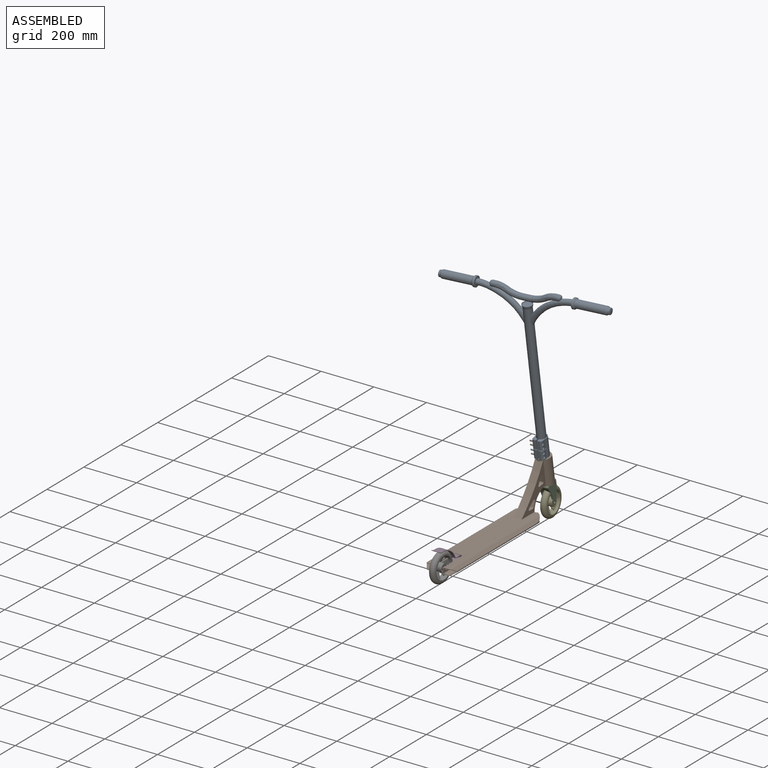
[diagram: assembled view]
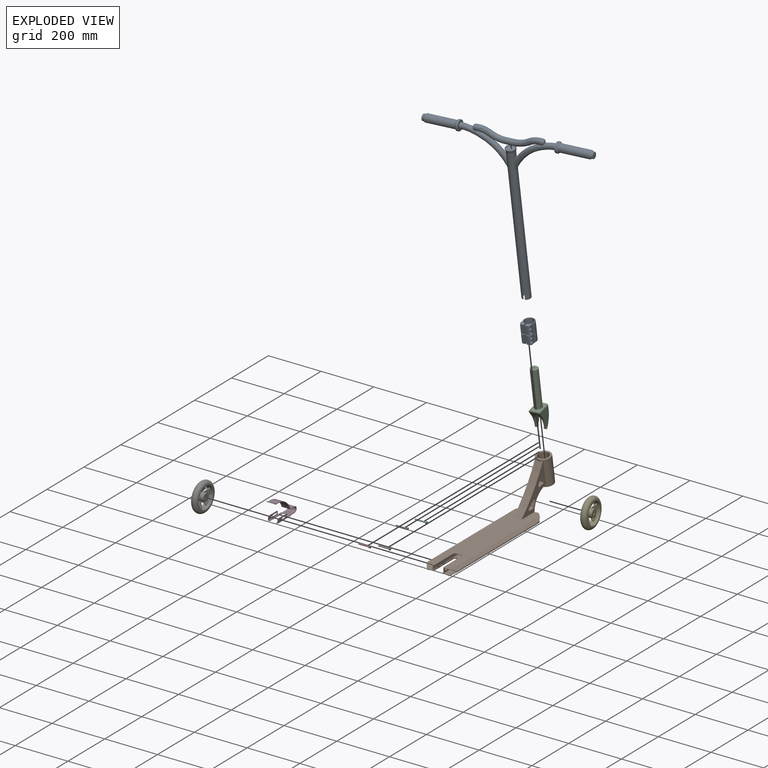
[diagram: exploded view]
GUIDED TOUR — MATED ASSEMBLY WITH SUBASSEMBLIES (Onshape document 58a45bdb176e9a0f88bd4a74, AutoMate assembly 58a45bdb176e9a0f88bd4a74_7fb52c981d04f5291ed24b62_b31cd171ed292f6dc39dd315_default)

This assembly has 13 component occurrences arranged in 11 top-level units: 10 individual components plus 1 subassembly (S0). The tour has two levels: first the top level, where each subassembly is treated as one rigid unit; then each subassembly is toured internally in its own section (nesting deeper than one subassembly level is flattened into its subassembly's section).

Components are labeled P0..P12 across the whole record; subassembly units are labeled S0..S0. A mate is a constraint between two units; its type names the relative motion it leaves free:
  CYLINDRICAL — leaves both rotation about and translation along the listed axis free,
  FASTENED — locks the two components together rigidly (no relative motion).
Axis/direction vectors are unit vectors and 'through' points are millimeter coordinates, both in the assembly's world frame.

TOP-LEVEL MATES (between units; each subassembly's internal mates are listed in its own section)
  1. FASTENED "Fastened 7": P1 <-> P10, direction (-1.000, 0.000, 0.000) through (9.01, 298.69, 169.64) mm
  2. CYLINDRICAL "Cylindrical 3": P12 <-> P5, axis (0.995, 0.095, 0.015) through (-12.50, 350.81, -5.88) mm
  3. FASTENED "Fastened 1": P11 <-> P4, direction (-1.000, 0.000, 0.000) through (19.00, -236.00, -7.72) mm
  4. FASTENED "Fastened 3": P10 <-> P11, direction (0.000, 0.156, -0.988) through (-0.07, 320.10, 163.60) mm
  5. FASTENED "Fastened 4": P9 <-> P10, direction (-1.000, 0.000, 0.000) through (9.01, 291.10, 217.54) mm
  6. CYLINDRICAL "Cylindrical 2": P12 <-> P11, axis (0.000, -0.156, 0.988) through (-0.07, 312.62, 210.82) mm
  7. FASTENED "Fastened 5": P3 <-> P10, direction (-1.000, 0.000, 0.000) through (9.01, 293.45, 202.73) mm
  8. FASTENED "Fastened 6": P6 <-> P10, direction (1.000, 0.000, 0.000) through (9.01, 296.34, 184.46) mm
  9. FASTENED "Fastened 2": S0 <-> P12, direction (0.000, 0.156, -0.988) through (-0.07, 318.88, 171.31) mm
  10. CYLINDRICAL "Cylindrical 1": P8 <-> P4, axis (1.000, 0.000, 0.000) through (12.00, -236.00, -7.72) mm

TOP-LEVEL ASSEMBLY ORDER
  1. P11 — the base component [order heuristic]
  2. P12 — core [order heuristic]
  3. P5 — core [order heuristic]
  4. P10 [order verified]
  5. P6 [order verified]
  6. P3 [order verified]
  7. P1 [order verified]
  8. P9 [order verified]
  9. S0 [order verified]
  10. P4 [order verified]
  11. P8 [order verified]
(P3, P6 verified with a relaxed clearance tolerance: the source model stores slight part interference there.)
Order-tag legend:
  [order verified] — this step's position reverses a verified removal order: the component was checked to insert without passing through the ones already placed.
  [order heuristic] — the first 3 components form the assembly's core: parts whose collision-free extraction could not be verified, listed in mate-graph order.

Of the 13 component occurrences, 1 carries the full construction recipe — the FeatureScript program that regenerates the part's solid from scratch; the rest are supplied as boundary geometry only. Each toured unit is shown spotlighted twice — assembled, then exploded with a leader line back to its socket (green = recipe-attached component, orange = geometry-only, blue = subassembly unit; the rest desaturated gray).
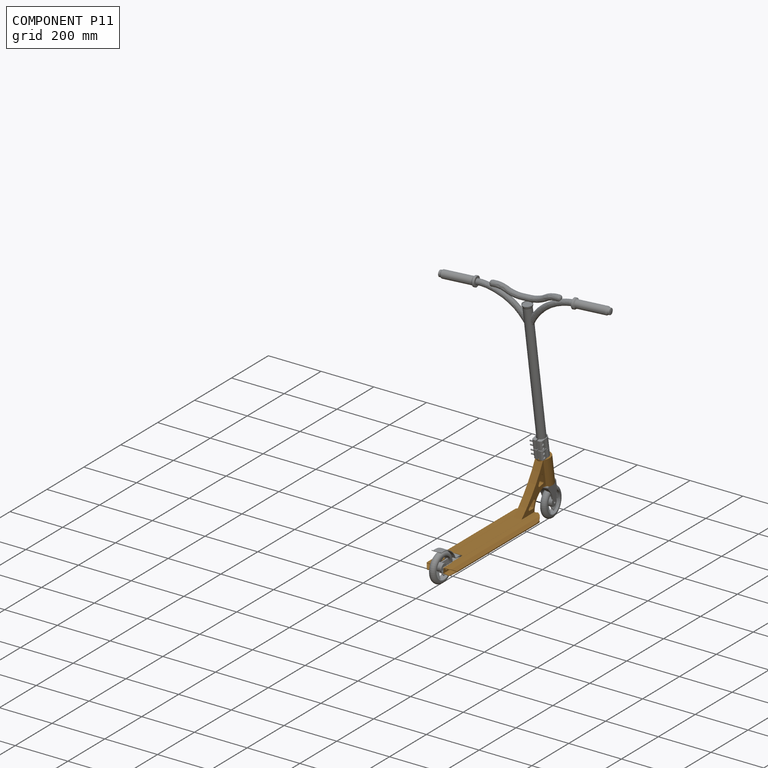
[diagram: component P11 — assembled]
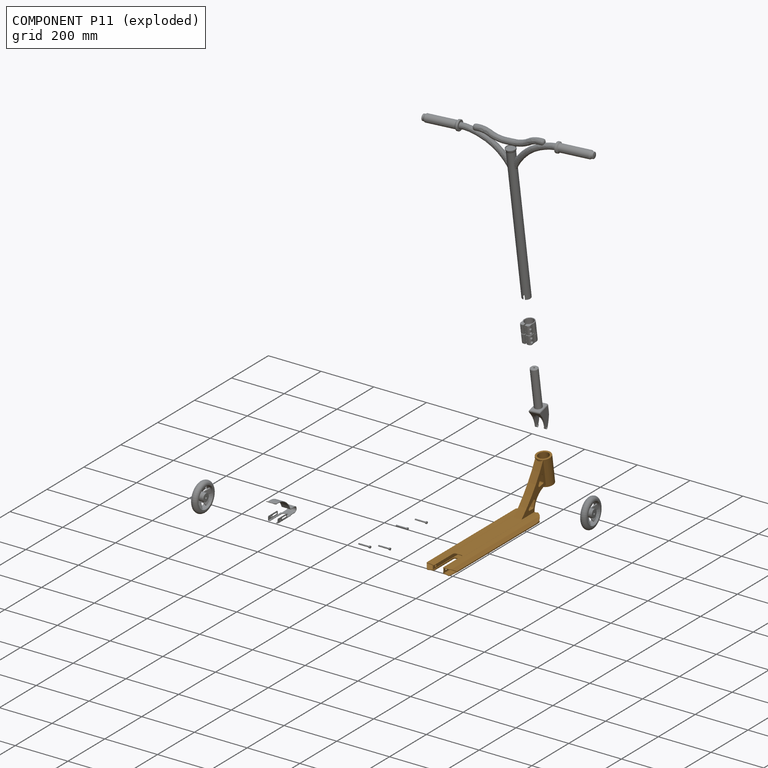
[diagram: component P11 — exploded]
COMPONENT P11 — geometry summary (no construction recipe available for this part):
  bounding box: 612.9 x 190.3 x 115.0 mm
  B-rep topology: 1 solid, 84 faces, 508 edges
  volume: 547966 mm^3 (4% of its bounding box)
  symmetry: mirror-symmetric across its x mid-plane
Held by: FASTENED mate "Fastened 1" to P4; FASTENED mate "Fastened 3" to P10; CYLINDRICAL mate "Cylindrical 2" to P12.
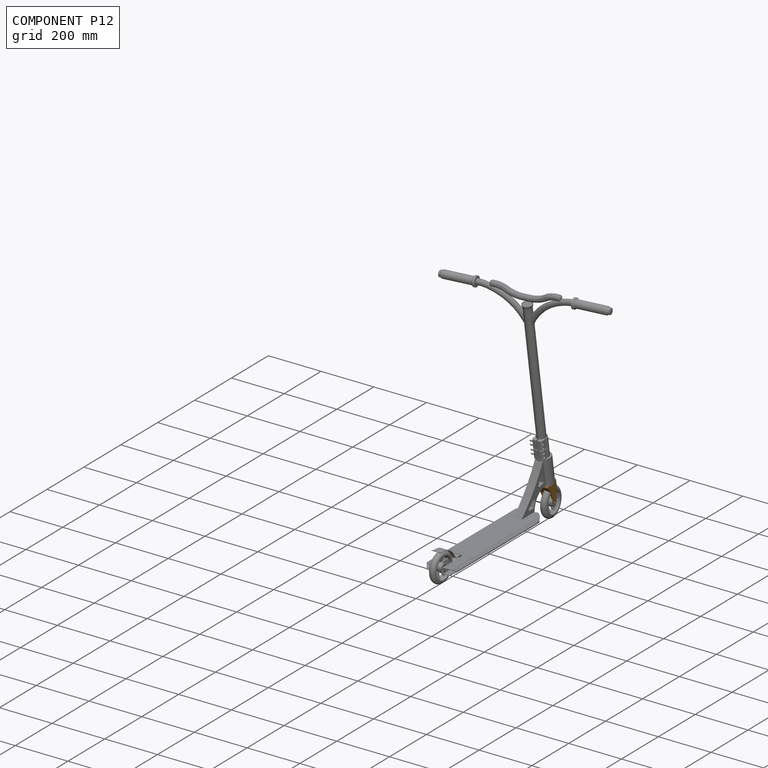
[diagram: component P12 — assembled]
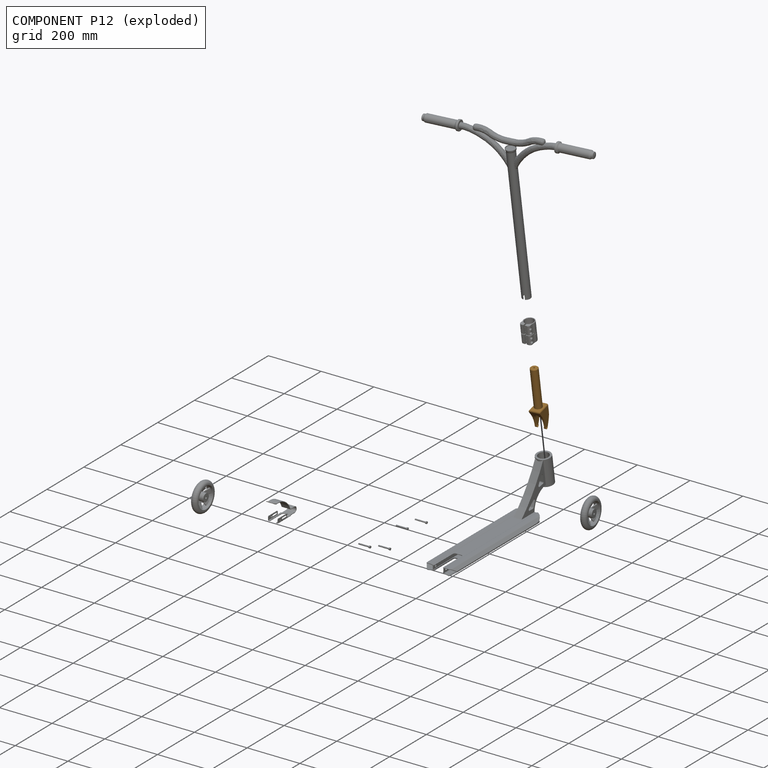
[diagram: component P12 — exploded]
COMPONENT P12 — geometry summary (no construction recipe available for this part):
  bounding box: 225.1 x 56.6 x 40.0 mm
  B-rep topology: 1 solid, 41 faces, 207 edges
  volume: 158816 mm^3 (31% of its bounding box)
  symmetry: mirror-symmetric across its y mid-plane
Held by: CYLINDRICAL mate "Cylindrical 3" to P5; CYLINDRICAL mate "Cylindrical 2" to P11; FASTENED mate "Fastened 2" to P0.
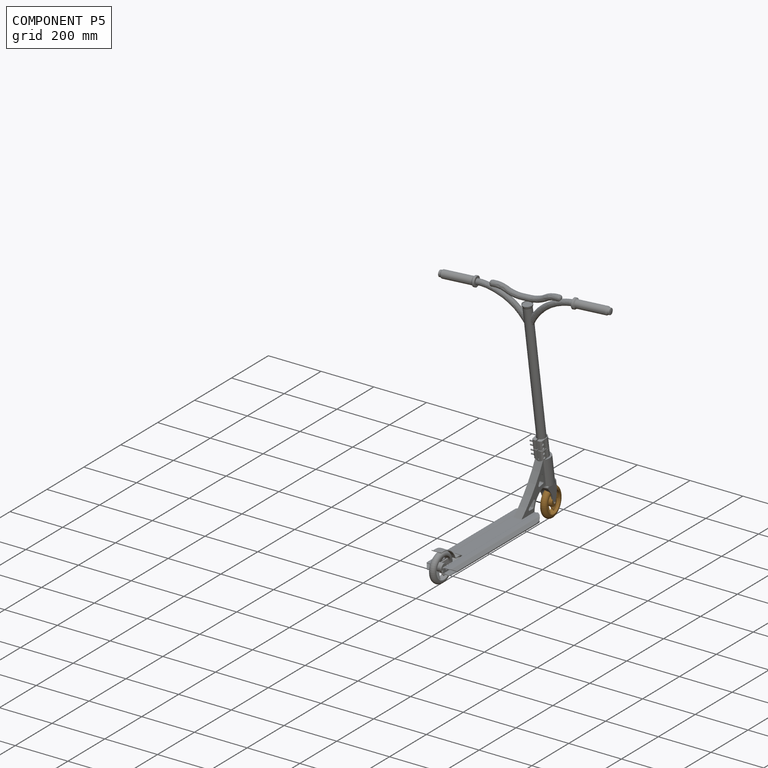
[diagram: component P5 — assembled]
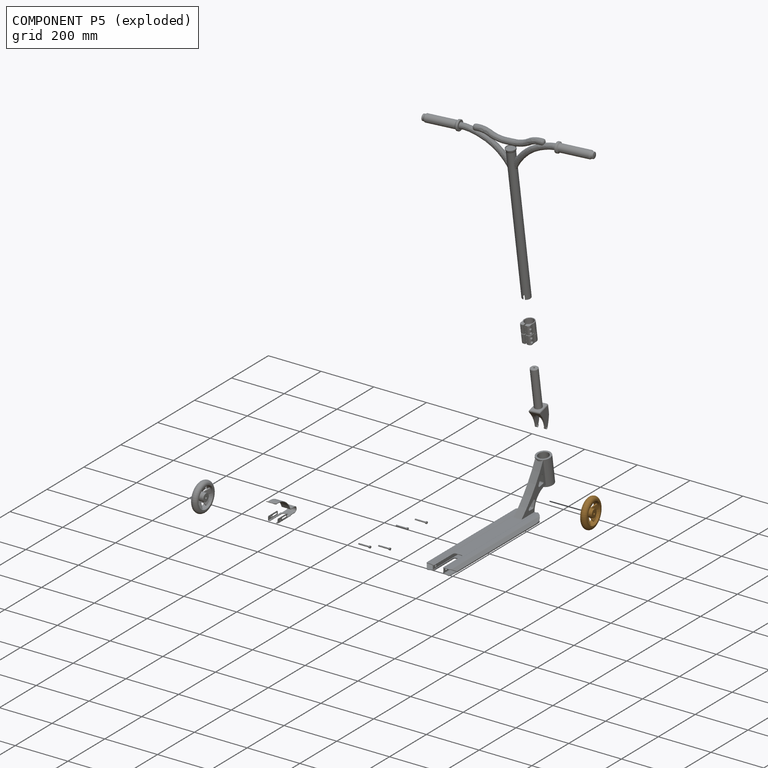
[diagram: component P5 — exploded]
COMPONENT P5 — geometry summary (no construction recipe available for this part):
  bounding box: 119.3 x 119.3 x 24.5 mm
  B-rep topology: 1 solid, 33 faces, 186 edges
  volume: 114822 mm^3 (33% of its bounding box)
  symmetry: 6-fold rotationally symmetric about the z axis; mirror-symmetric across its x mid-plane, y mid-plane
Held by: CYLINDRICAL mate "Cylindrical 3" to P12.
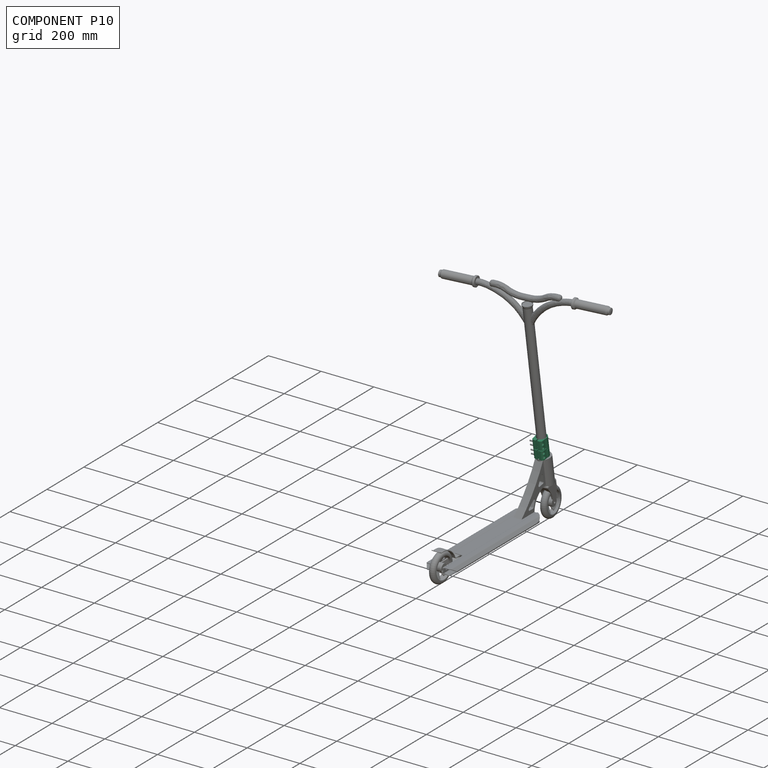
[diagram: component P10 — assembled]
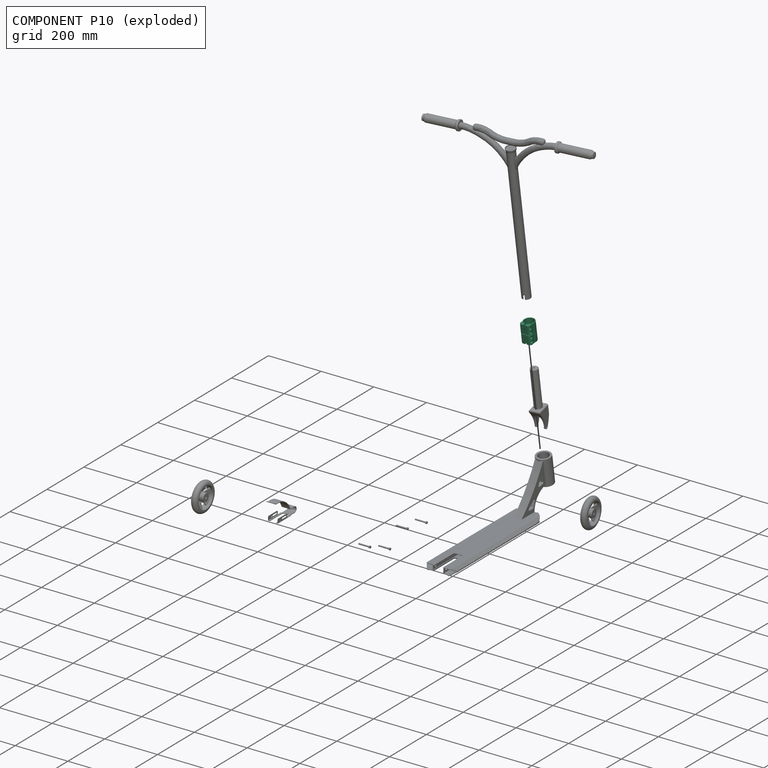
[diagram: component P10 — exploded]
COMPONENT P10 — recipe-attached (CADFS 00533072, mesh-verified: the recipe's output STEP matches this component's geometry to below the mesh-comparison resolution (tessellation chordal tolerance ~0.142 mm)).
Held by: FASTENED mate "Fastened 7" to P1; FASTENED mate "Fastened 3" to P11; FASTENED mate "Fastened 4" to P9; FASTENED mate "Fastened 5" to P3; FASTENED mate "Fastened 6" to P6.
Construction recipe (FeatureScript — the CAD program that rebuilds this solid; sketch coordinates are in the units given by the * unit suffixes, e.g. mm):

FeatureScript 1549;
import(path : "onshape/std/geometry.fs", version : "1549.0");
import(path : "onshape/std/common.fs", version : "1549.0");
const mm = millimeter;
const VERTEX = EntityType.VERTEX;
const EDGE = EntityType.EDGE;
const FACE = EntityType.FACE;
const BODY = EntityType.BODY;
function v(x, y){return vector(x, y);}
function OD(order){return orderDisambiguation(order);}
function OSD(set){return originalSetDisambiguation(set);}
function TD(topology){return topologyDisambiguation(topology);}
function TDD(query){return trueDependencyDisambiguation(query);}
function sQuery(a, b, c) {return sketchEntityQuery(a, b, c);}

annotation { "Feature Type Name" : "Feature", "Feature Type Description" : "" }
export const myFeature = defineFeature(function(context is Context, id is Id, definition is map)
    precondition{}
    {
        {
            var Q0;
            Q0=qCreatedBy(makeId("Top.planeOp"),FACE);
            var sketch = newSketch(context, id + "F0", { "sketchPlane" : qUnion([Q0])});
            skArc(sketch, "E0", {"start": v(-17.32, -2.5) * mm, "mid": v(17.5, 0) * mm, "end": v(-17.32, 2.5) * mm});
            skArc(sketch, "E1", {"start": v(-7.92, -18.9) * mm, "mid": v(20.5, 0) * mm, "end": v(-7.92, 18.9) * mm});
            skLineSegment(sketch, "E2", {"start": v(-7.92, 18.9) * mm, "end": v(-20.12, 18.9) * mm});
            skLineSegment(sketch, "E3", {"start": v(-28.12, 10.9) * mm, "end": v(-28.12, 2.5) * mm});
            skLineSegment(sketch, "E4", {"start": v(-28.12, 2.5) * mm, "end": v(-17.32, 2.5) * mm});
            skPoint(sketch, "E5.visualSharp", {"position": v(-28.12, 18.9) * mm});
            skArc(sketch, "E5.filletArc", {"start": v(-20.12, 18.9) * mm, "mid": v(-25.78, 16.57) * mm, "end": v(-28.12, 10.9) * mm});
            skLineSegment(sketch, "E6", {"start": v(0, 0) * mm, "end": v(33.48, 0) * mm, "construction": true});
            skLineSegment(sketch, "E7.MirrorCS", {"start": v(-7.92, -18.9) * mm, "end": v(-20.12, -18.9) * mm});
            skArc(sketch, "E8.MirrorCS", {"start": v(-20.12, -18.9) * mm, "mid": v(-25.78, -16.57) * mm, "end": v(-28.12, -10.9) * mm});
            skLineSegment(sketch, "E9.MirrorCS", {"start": v(-28.12, -10.9) * mm, "end": v(-28.12, -2.5) * mm});
            skLineSegment(sketch, "E10.MirrorCS", {"start": v(-28.12, -2.5) * mm, "end": v(-17.32, -2.5) * mm});
            skSolve(sketch);
        }
        {
            var Q0;
            Q0 = qSketchRegion(id + "F0", true);
            extrude(context, id + "F1", {"entities" : qUnion([Q0]), "depth" : 70 * mm, "offsetDistance" : 25 * mm, "symmetric" : true});
        }
        {
            var Q0;
            Q0=makeQuery(id+"F1.opExtrude","SWEPT_FACE",FACE,{"disambiguationData":[OSD([sQuery(id+"F0.wireOp",EDGE,"E7.MirrorCS")])]});
            var sketch = newSketch(context, id + "F2", { "sketchPlane" : qUnion([Q0])});
            skPoint(sketch, "E11", {"position": v(-20.2, -25.68) * mm});
            skPoint(sketch, "E12", {"position": v(-20.2, -10.68) * mm});
            skPoint(sketch, "E13", {"position": v(-20.2, 22.82) * mm});
            skPoint(sketch, "E14", {"position": v(-20.2, 7.82) * mm});
            skSolve(sketch);
        }
        {
            var Q0;
            Q0=sQuery(id+"F2.wireOp",VERTEX,"E11");
            var Q1;
            Q1=sQuery(id+"F2.wireOp",VERTEX,"E12");
            var Q2;
            Q2=sQuery(id+"F2.wireOp",VERTEX,"E14");
            var Q3;
            Q3=sQuery(id+"F2.wireOp",VERTEX,"E13");
            var Q4;
            Q4=makeQuery(id+"F1.opExtrude","SWEPT_BODY",BODY,{"disambiguationData":[OSD([sQuery(id+"F0.wireOp",EDGE,"E0"),sQuery(id+"F0.wireOp",EDGE,"E1"),sQuery(id+"F0.wireOp",EDGE,"E2"),sQuery(id+"F0.wireOp",EDGE,"E3"),sQuery(id+"F0.wireOp",EDGE,"E4"),sQuery(id+"F0.wireOp",EDGE,"E5.filletArc"),sQuery(id+"F0.wireOp",EDGE,"E7.MirrorCS"),sQuery(id+"F0.wireOp",EDGE,"E8.MirrorCS"),sQuery(id+"F0.wireOp",EDGE,"E9.MirrorCS"),sQuery(id+"F0.wireOp",EDGE,"E10.MirrorCS")])]});
            hole(context, id + "F3", {"style" : HoleStyle.C_BORE, "endStyle" : HoleEndStyle.THROUGH, "holeDiameter" : 5 * mm, "cBoreDiameter" : 10 * mm, "cBoreDepth" : 8 * mm, "majorDiameter" : 5 * mm, "isTappedThrough" : true, "tappedDepth" : 12 * mm, "tapClearance" : 3, "locations" : qUnion([Q0, Q1, Q2, Q3]), "scope" : qUnion([Q4])});
        }
        {
            var Q0;
            Q0=qCreatedBy(makeId("Front.planeOp"),FACE);
            var sketch = newSketch(context, id + "F4", { "sketchPlane" : qUnion([Q0])});
            skLineSegment(sketch, "E15.bottom", {"start": v(-28.12, 1) * mm, "end": v(-5.72, 1) * mm});
            skLineSegment(sketch, "E15.top", {"start": v(-28.12, -1) * mm, "end": v(-5.72, -1) * mm});
            skLineSegment(sketch, "E15.left", {"start": v(-28.12, 1) * mm, "end": v(-28.12, -1) * mm});
            skLineSegment(sketch, "E15.right", {"start": v(-5.72, 1) * mm, "end": v(-5.72, -1) * mm});
            skSolve(sketch);
        }
        {
            var Q0;
            Q0 = qSketchRegion(id + "F4", true);
            extrude(context, id + "F5", {"entities" : qUnion([Q0]), "operationType" : NewBodyOperationType.REMOVE, "oppositeDirection" : true, "depth" : 55 * mm, "offsetDistance" : 25 * mm, "symmetric" : true});
        }
        {
            var Q0;
            Q0=qCreatedBy(makeId("Top.planeOp"),FACE);
            var sketch = newSketch(context, id + "F6", { "sketchPlane" : qUnion([Q0])});
            skCircle(sketch, "E16", {"center": v(0, -25) * mm, "radius": 6 * mm});
            skCircle(sketch, "E17.1.0", {"center": v(17.68, -17.68) * mm, "radius": 6 * mm});
            skCircle(sketch, "E17.2.0", {"center": v(25, 0) * mm, "radius": 6 * mm});
            skCircle(sketch, "E17.3.0", {"center": v(17.68, 17.68) * mm, "radius": 6 * mm});
            skCircle(sketch, "E17.4.0", {"center": v(0, 25) * mm, "radius": 6 * mm});
            skPoint(sketch, "E17.center", {"position": v(0, 0) * mm});
            skLineSegment(sketch, "E17.anchor1", {"start": v(0, 0) * mm, "end": v(0, -25) * mm, "construction": true});
            skLineSegment(sketch, "E17.anchor2", {"start": v(0, 0) * mm, "end": v(0, 25) * mm, "construction": true});
            skSolve(sketch);
        }
        {
            var Q0;
            Q0 = qSketchRegion(id + "F6", true);
            extrude(context, id + "F7", {"entities" : qUnion([Q0]), "operationType" : NewBodyOperationType.REMOVE, "oppositeDirection" : true, "depth" : 8 * mm, "offsetDistance" : 25 * mm});
        }
    });
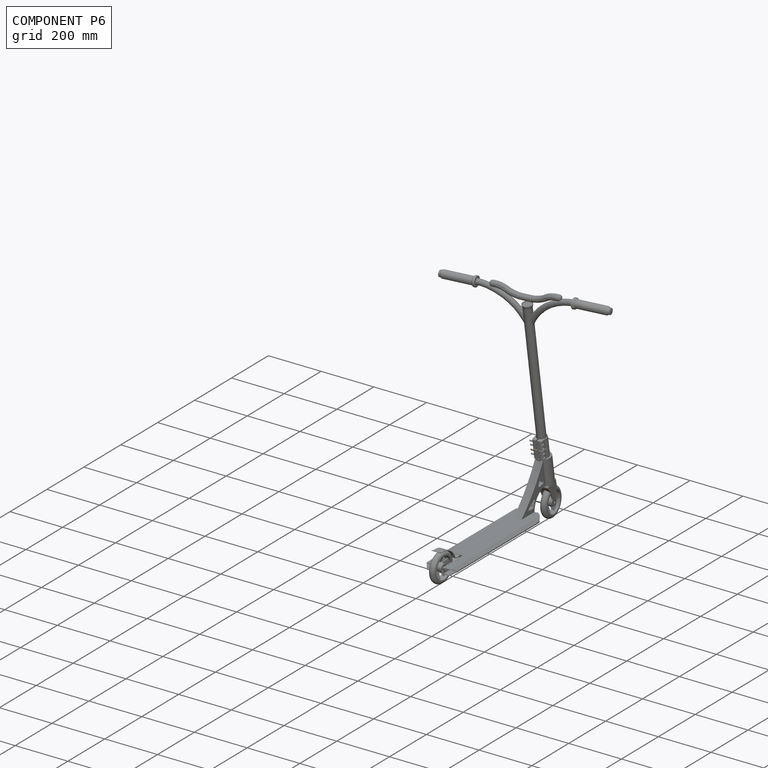
[diagram: component P6 — assembled]
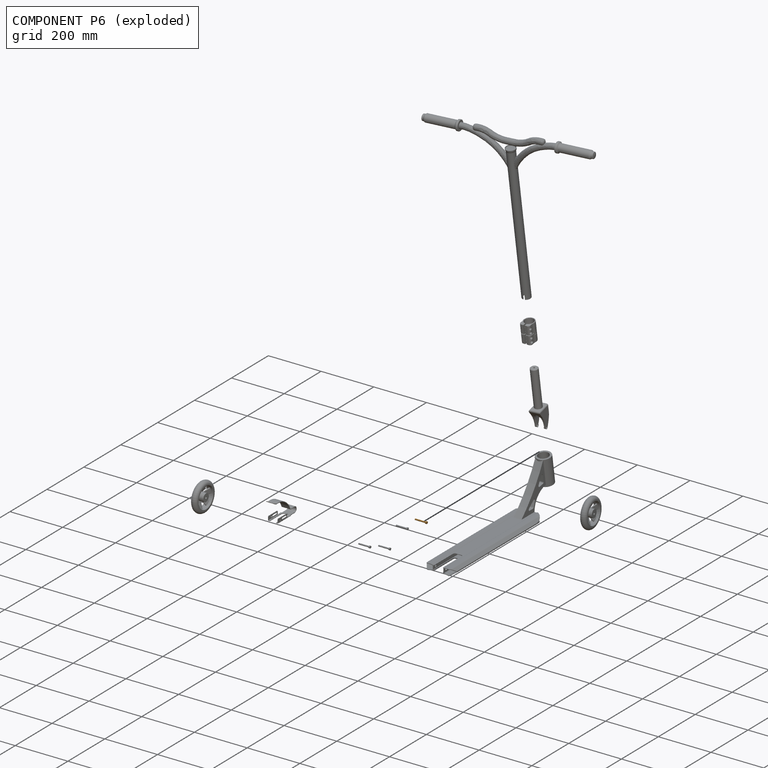
[diagram: component P6 — exploded]
COMPONENT P6 — geometry summary (no construction recipe available for this part):
  bounding box: 45.0 x 8.5 x 8.5 mm
  B-rep topology: 1 solid, 5 faces, 12 edges
  volume: 1069 mm^3 (33% of its bounding box)
  symmetry: revolution-symmetric about the z axis through its bounding-box center; mirror-symmetric across its x mid-plane, y mid-plane
Held by: FASTENED mate "Fastened 6" to P10.
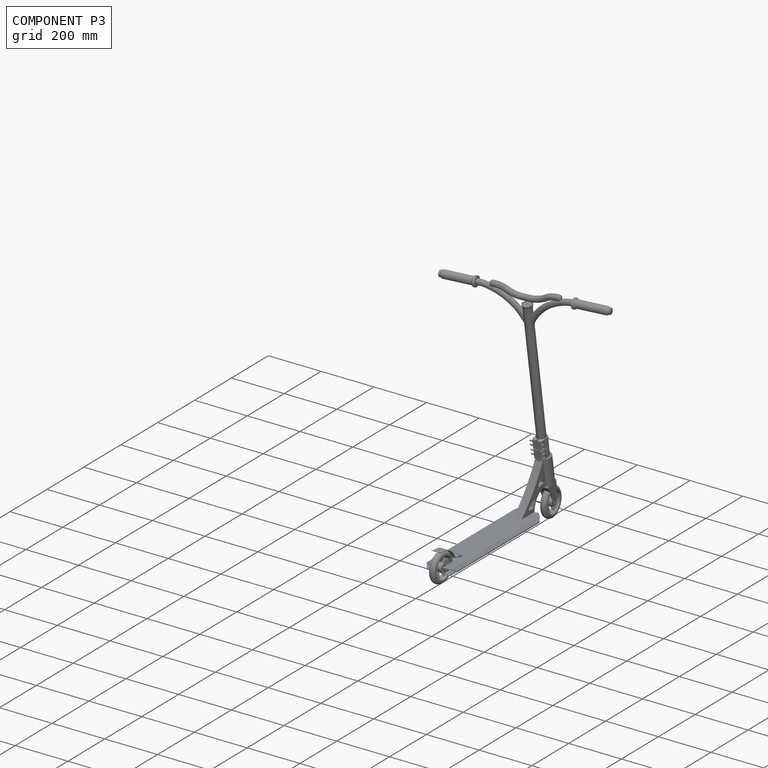
[diagram: component P3 — assembled]
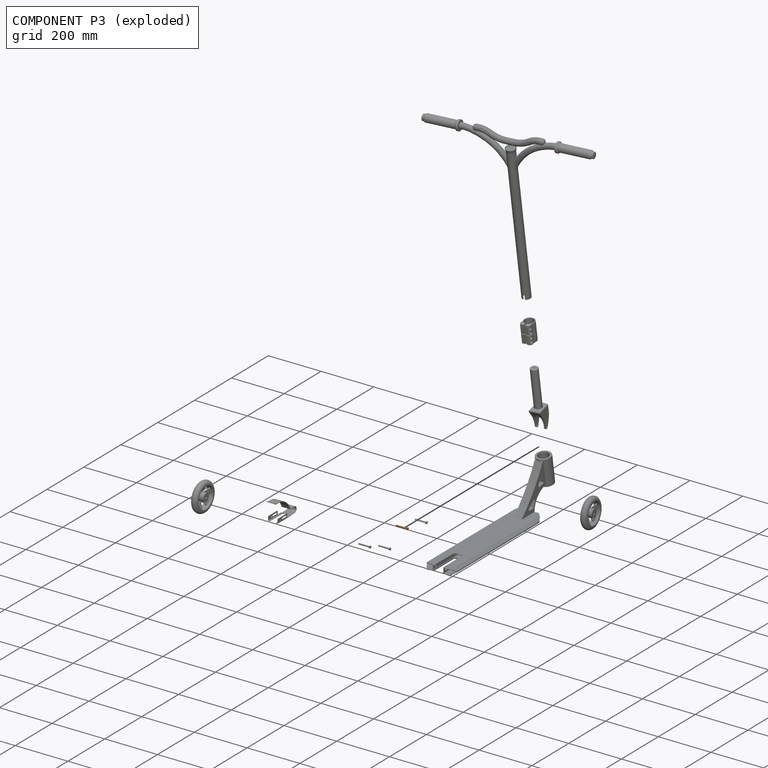
[diagram: component P3 — exploded]
COMPONENT P3 — geometry summary (no construction recipe available for this part):
  bounding box: 45.0 x 8.5 x 8.5 mm
  B-rep topology: 1 solid, 5 faces, 12 edges
  volume: 1069 mm^3 (33% of its bounding box)
  symmetry: revolution-symmetric about the z axis through its bounding-box center; mirror-symmetric across its x mid-plane, y mid-plane
Held by: FASTENED mate "Fastened 5" to P10.
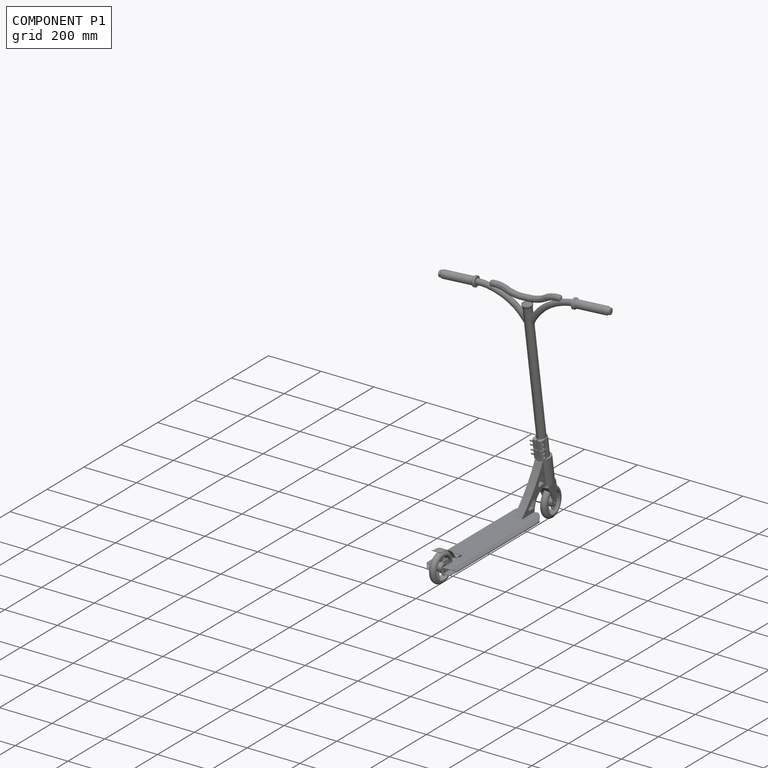
[diagram: component P1 — assembled]
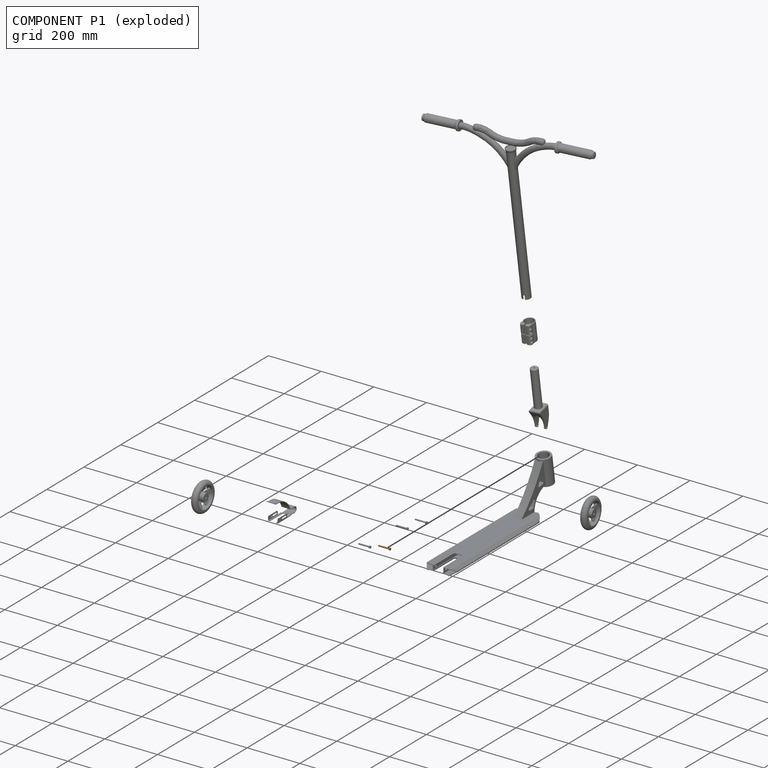
[diagram: component P1 — exploded]
COMPONENT P1 — geometry summary (no construction recipe available for this part):
  bounding box: 45.0 x 8.5 x 8.5 mm
  B-rep topology: 1 solid, 5 faces, 12 edges
  volume: 1069 mm^3 (33% of its bounding box)
  symmetry: revolution-symmetric about the z axis through its bounding-box center; mirror-symmetric across its x mid-plane, y mid-plane
Held by: FASTENED mate "Fastened 7" to P10.
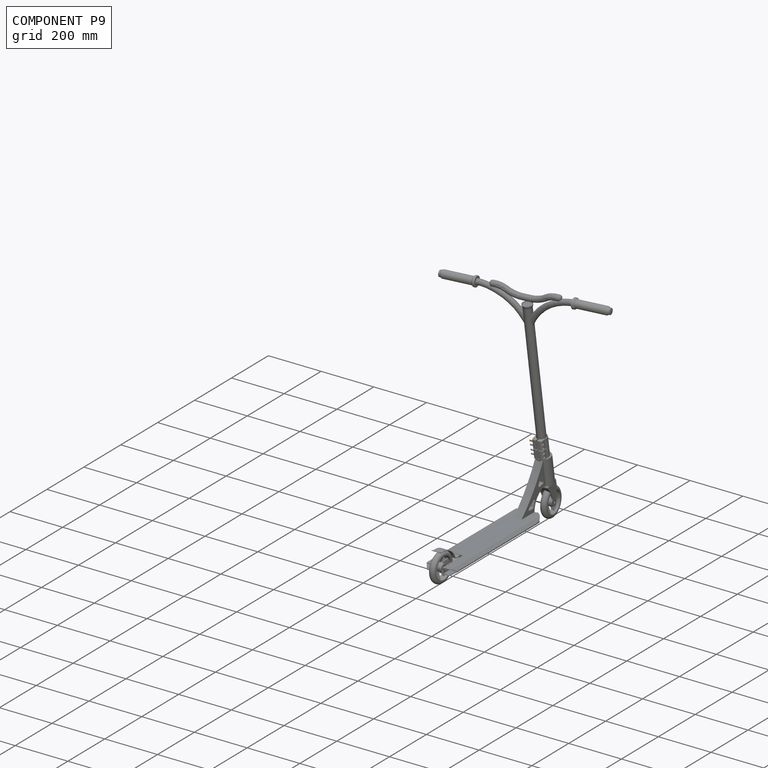
[diagram: component P9 — assembled]
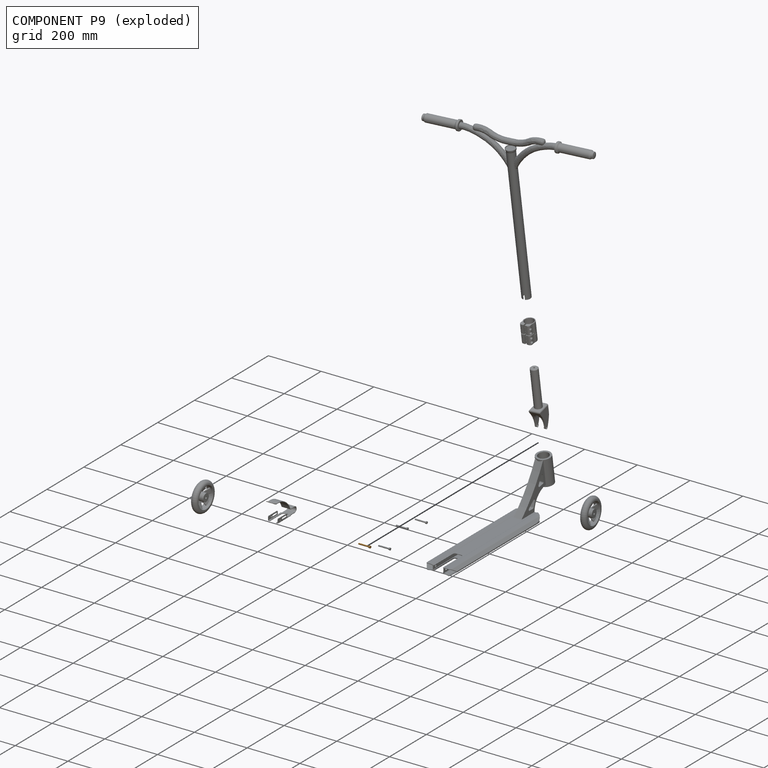
[diagram: component P9 — exploded]
COMPONENT P9 — geometry summary (no construction recipe available for this part):
  bounding box: 45.0 x 8.5 x 8.5 mm
  B-rep topology: 1 solid, 5 faces, 12 edges
  volume: 1069 mm^3 (33% of its bounding box)
  symmetry: revolution-symmetric about the z axis through its bounding-box center; mirror-symmetric across its x mid-plane, y mid-plane
Held by: FASTENED mate "Fastened 4" to P10.
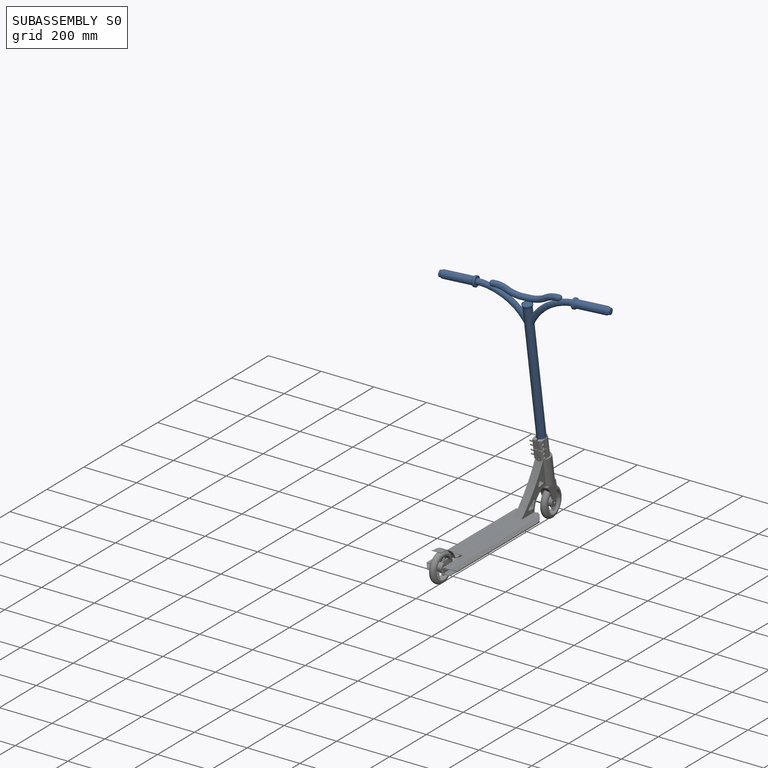
[diagram: subassembly S0 — assembled]
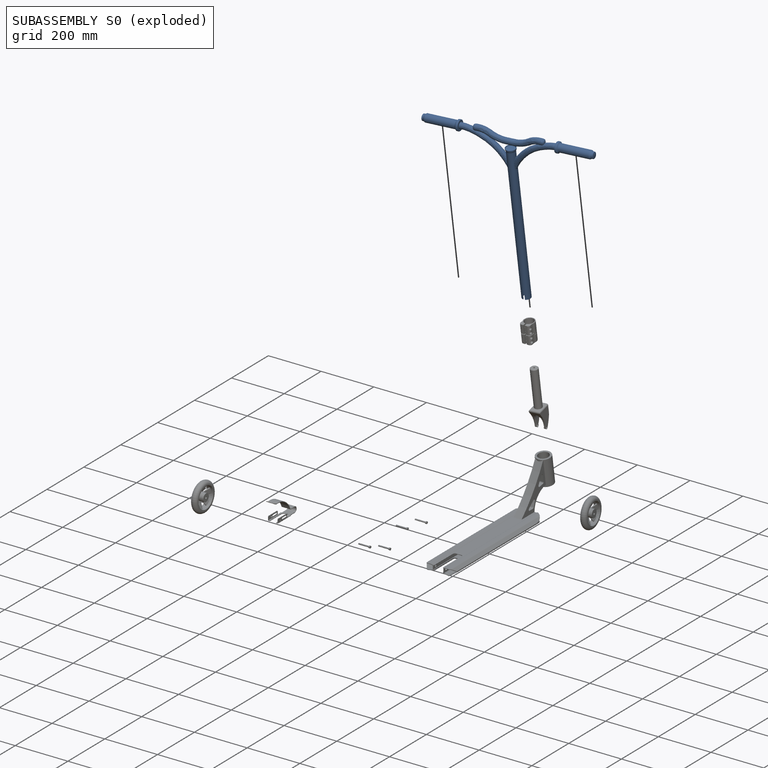
[diagram: subassembly S0 — exploded]
SUBASSEMBLY S0 — 3 components (P0, P2, P7), of which 0 recipe-attached; toured below.
Held by: FASTENED mate "Fastened 2" to P12.
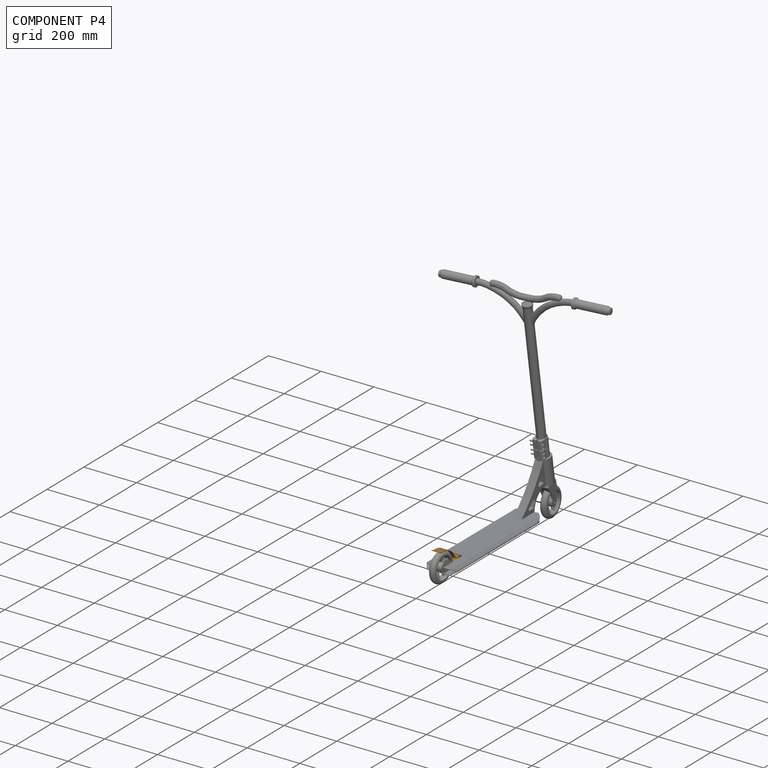
[diagram: component P4 — assembled]
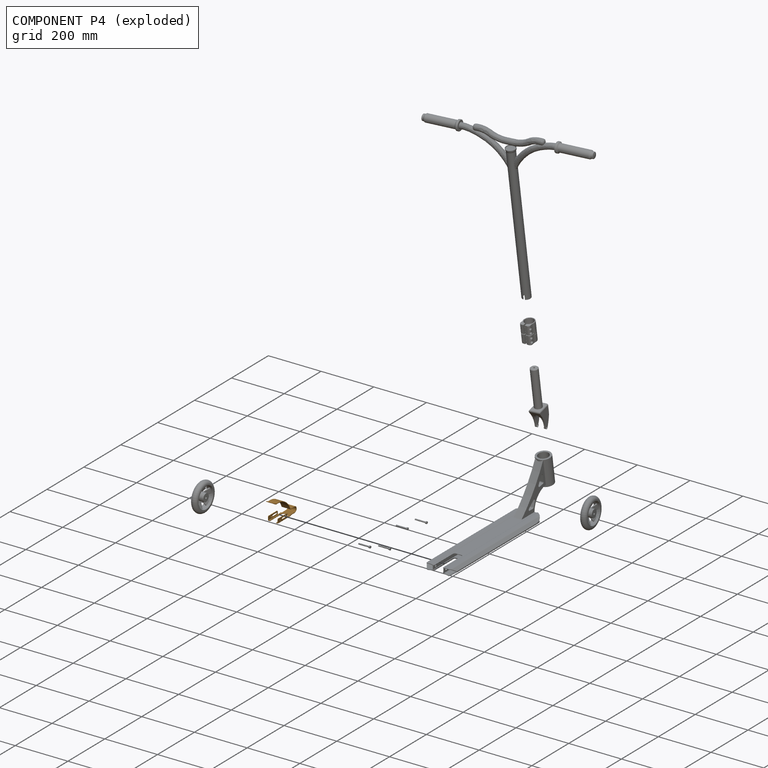
[diagram: component P4 — exploded]
COMPONENT P4 — geometry summary (no construction recipe available for this part):
  bounding box: 119.2 x 73.5 x 38.0 mm
  B-rep topology: 1 solid, 52 faces, 290 edges
  volume: 16031 mm^3 (5% of its bounding box)
  symmetry: mirror-symmetric across its y mid-plane
Held by: FASTENED mate "Fastened 1" to P11; CYLINDRICAL mate "Cylindrical 1" to P8.
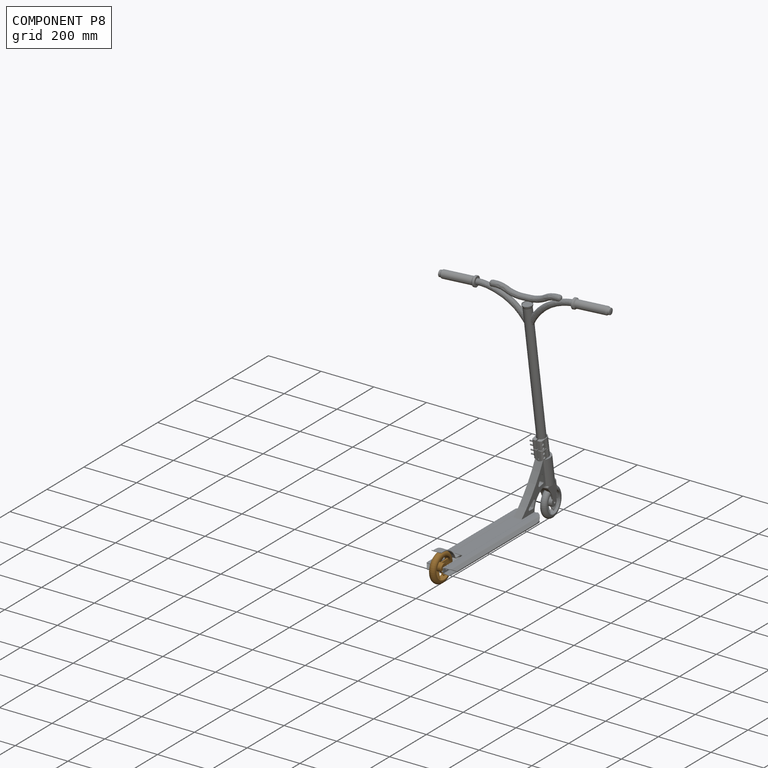
[diagram: component P8 — assembled]
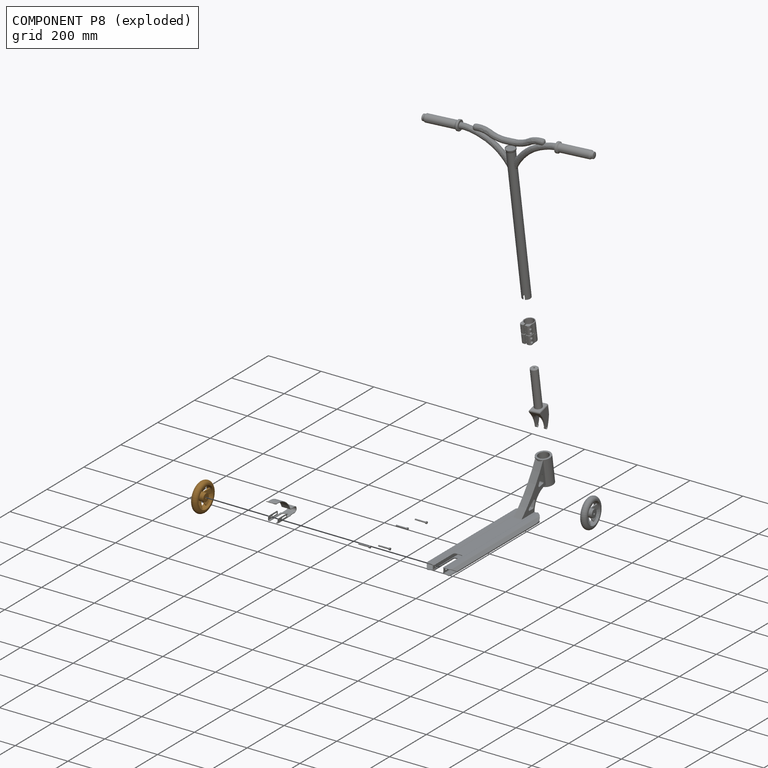
[diagram: component P8 — exploded]
COMPONENT P8 — geometry summary (no construction recipe available for this part):
  bounding box: 119.3 x 119.3 x 24.5 mm
  B-rep topology: 1 solid, 33 faces, 186 edges
  volume: 114822 mm^3 (33% of its bounding box)
  symmetry: 6-fold rotationally symmetric about the z axis; mirror-symmetric across its x mid-plane, y mid-plane
Held by: CYLINDRICAL mate "Cylindrical 1" to P4.
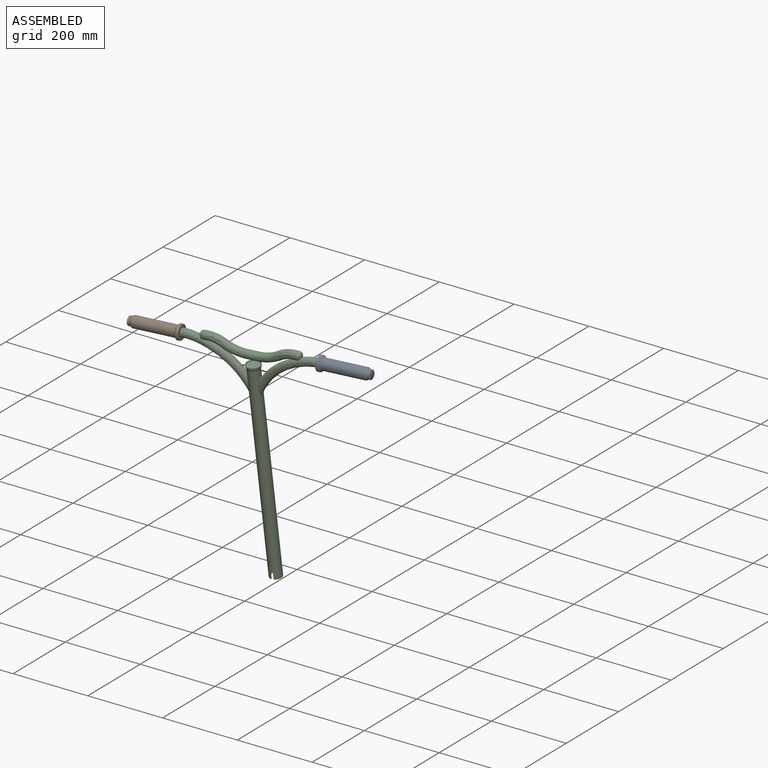
[diagram: subassembly S0 — assembled view]
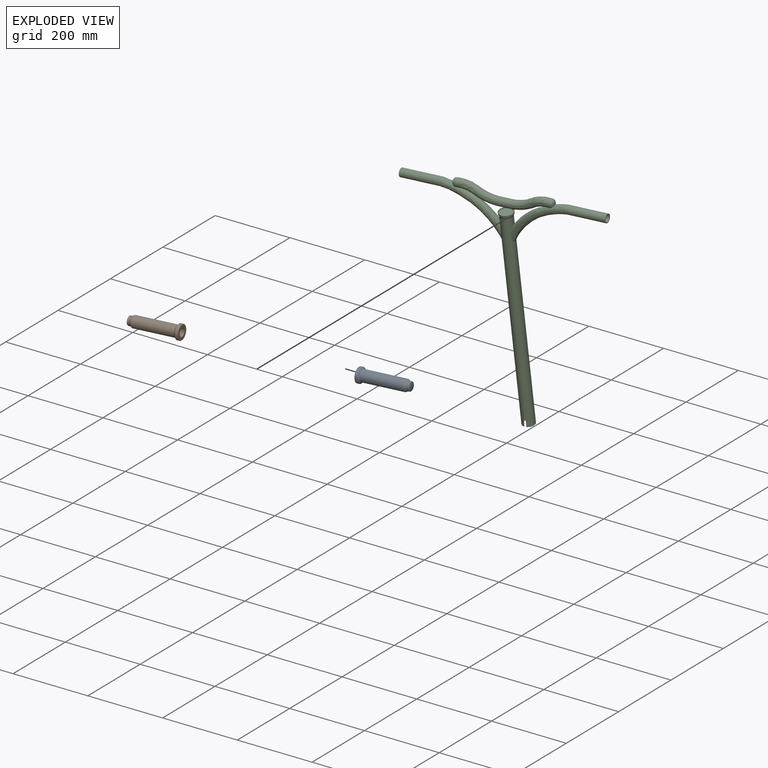
[diagram: subassembly S0 — exploded view]
SUBASSEMBLY S0 TOUR — 3 components, shown here in isolation at its own camera.

INTERNAL MATES
  1. FASTENED "Fastened 1": P7 <-> P0, direction (-0.995, -0.095, -0.015) through (258.72, 250.72, 761.62) mm
  2. FASTENED "Fastened 2": P7 <-> P2, direction (-0.995, -0.095, -0.015) through (-258.87, 201.28, 753.79) mm
  3. FASTENED "Fastened 2": P7 <-> P2, direction (-0.995, -0.095, -0.015) through (-258.87, 201.28, 753.79) mm
  4. FASTENED "Fastened 1": P7 <-> P0, direction (-0.995, -0.095, -0.015) through (258.72, 250.72, 761.62) mm

ASSEMBLY ORDER (within the subassembly)
  1. P2 — the base component [order verified]
  2. P0 [order verified]
  3. P7 [order verified]
Order-tag legend:
  [order verified] — this step's position reverses a verified removal order: the component was checked to insert without passing through the ones already placed.
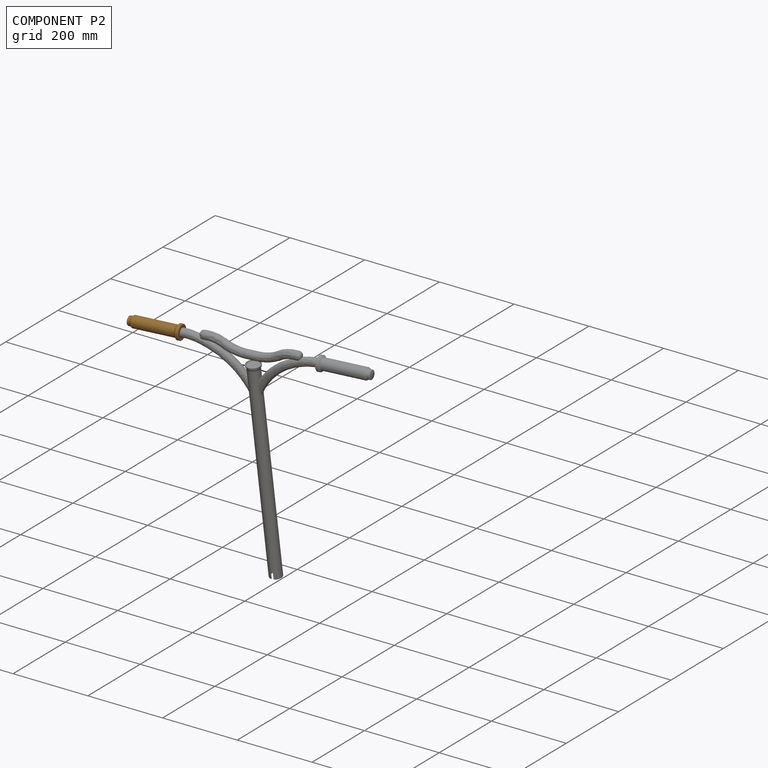
[diagram: component P2 — assembled]
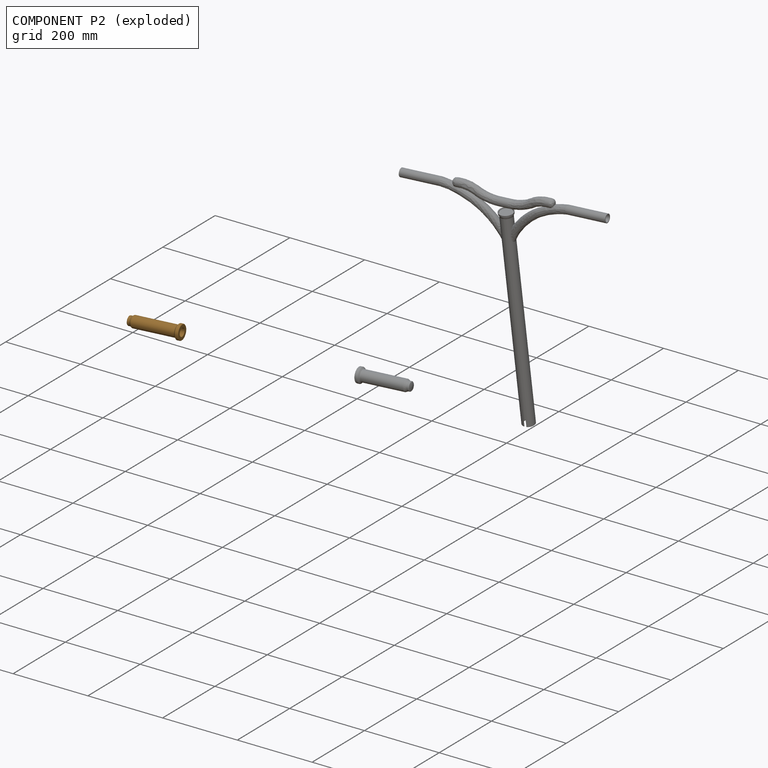
[diagram: component P2 — exploded]
COMPONENT P2 — geometry summary (no construction recipe available for this part):
  bounding box: 135.0 x 41.8 x 41.8 mm
  B-rep topology: 1 solid, 15 faces, 65 edges
  volume: 52418 mm^3 (22% of its bounding box)
  symmetry: revolution-symmetric about the z axis through its bounding-box center; mirror-symmetric across its x mid-plane, y mid-plane
Held by: FASTENED mate "Fastened 2" to P7; FASTENED mate "Fastened 2" to P7.
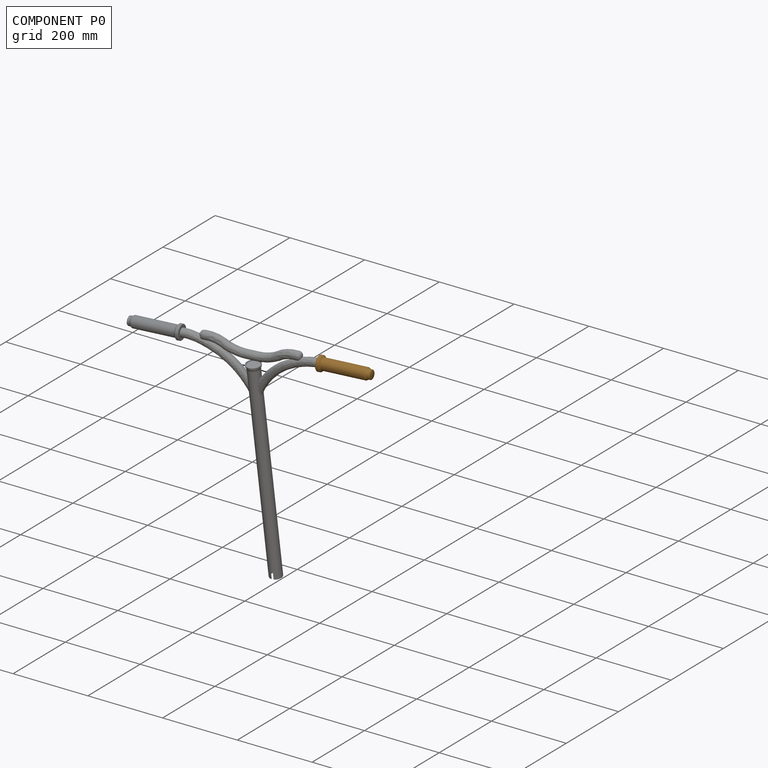
[diagram: component P0 — assembled]
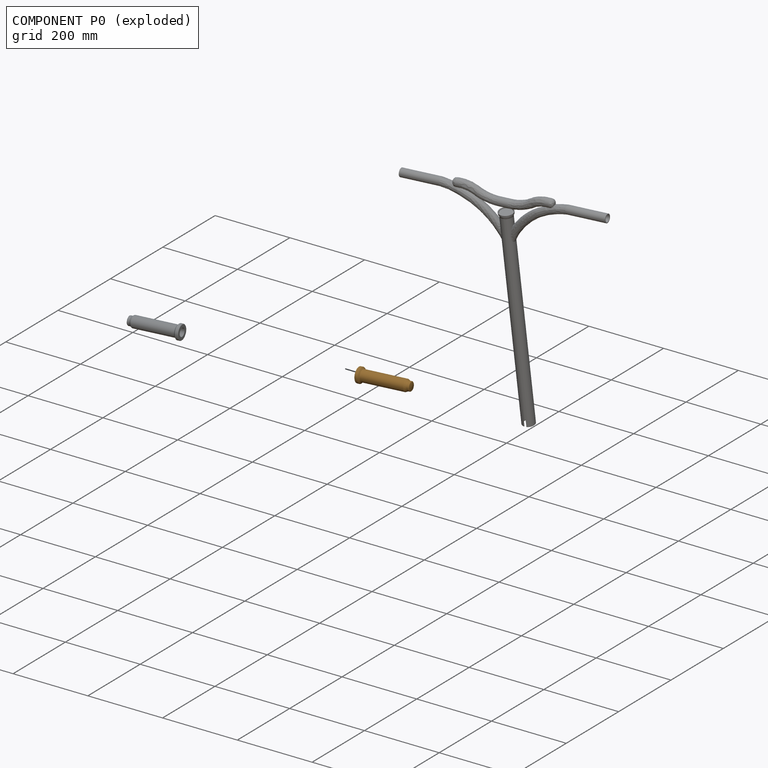
[diagram: component P0 — exploded]
COMPONENT P0 — geometry summary (no construction recipe available for this part):
  bounding box: 135.0 x 41.8 x 41.8 mm
  B-rep topology: 1 solid, 15 faces, 65 edges
  volume: 52418 mm^3 (22% of its bounding box)
  symmetry: revolution-symmetric about the z axis through its bounding-box center; mirror-symmetric across its x mid-plane, y mid-plane
Held by: FASTENED mate "Fastened 1" to P7; FASTENED mate "Fastened 1" to P7.
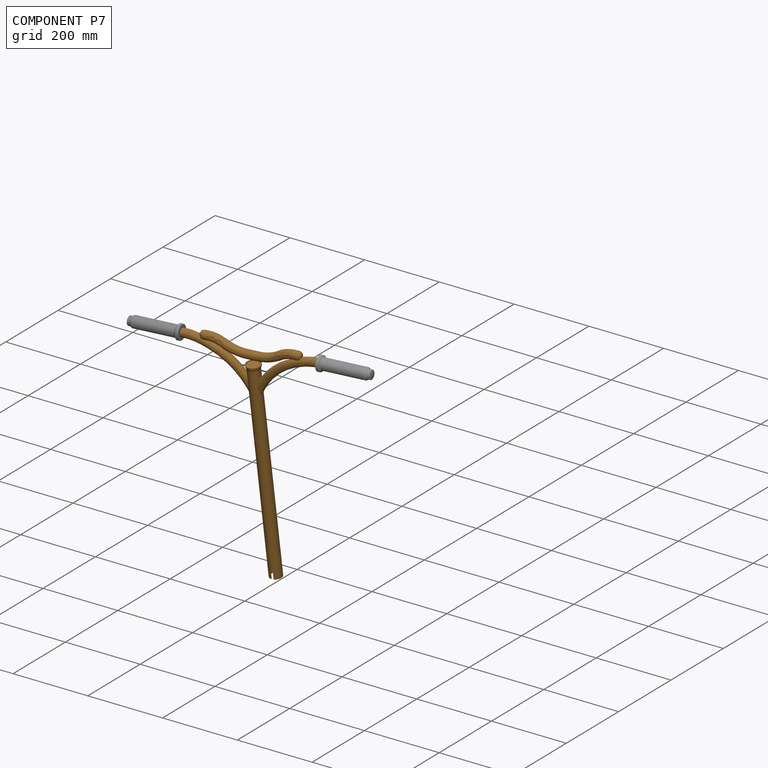
[diagram: component P7 — assembled]
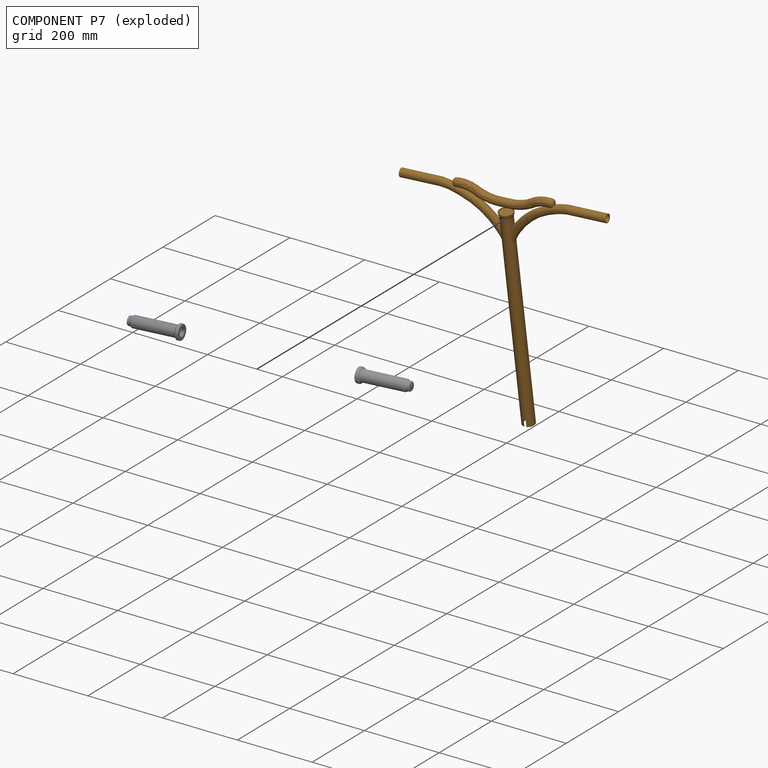
[diagram: component P7 — exploded]
COMPONENT P7 — geometry summary (no construction recipe available for this part):
  bounding box: 616.0 x 524.0 x 48.0 mm
  B-rep topology: 1 solid, 53 faces, 239 edges
  volume: 433631 mm^3 (3% of its bounding box)
  symmetry: mirror-symmetric across its x mid-plane
Held by: FASTENED mate "Fastened 1" to P0; FASTENED mate "Fastened 2" to P2; FASTENED mate "Fastened 2" to P2; FASTENED mate "Fastened 1" to P0.
PROVENANCE & LICENSES
Assembly (occurrences, transforms, mates, per-part STEP geometry): AutoMate dataset, Zenodo record 7776208, CC0.
Construction recipes: CADFS (HuggingFace VladPyatov/CADFS, CC-BY-4.0, layered over the ABC dataset), FeatureScript reconstruction programs keyed by ABC model id.
Join: ABC meta listings map ABC model id -> Onshape documentId; within a shared document, parts are matched by geometric signature (bounding-box dims + volume at 0.1% relative tolerance, exact B-rep face/solid counts).
Verification: 1 of this assembly's 13 components carries a recipe attachment, and every attachment is mesh-verified: the CADFS STEP and the AutoMate member STEP were compared as meshes in their shared local frame (symmetric sampled-point-to-mesh distance); worst across the 1 attachment: below the mesh-comparison resolution (tessellation chordal tolerance ~0.142 mm) on a 95 mm part.
Renders: orthographic iso camera (az 35 / el 25); the floor grid conveys scale (grid pitch printed in each image; no ruler). In the exploded view each component is displaced by its stored offset vector: the offsets alone carry the explosion direction (mate normal/axis signs are not orientation cues and do not encode it), and separation distances are assigned per mate-chain, not proportionally to assembly-order depth.
